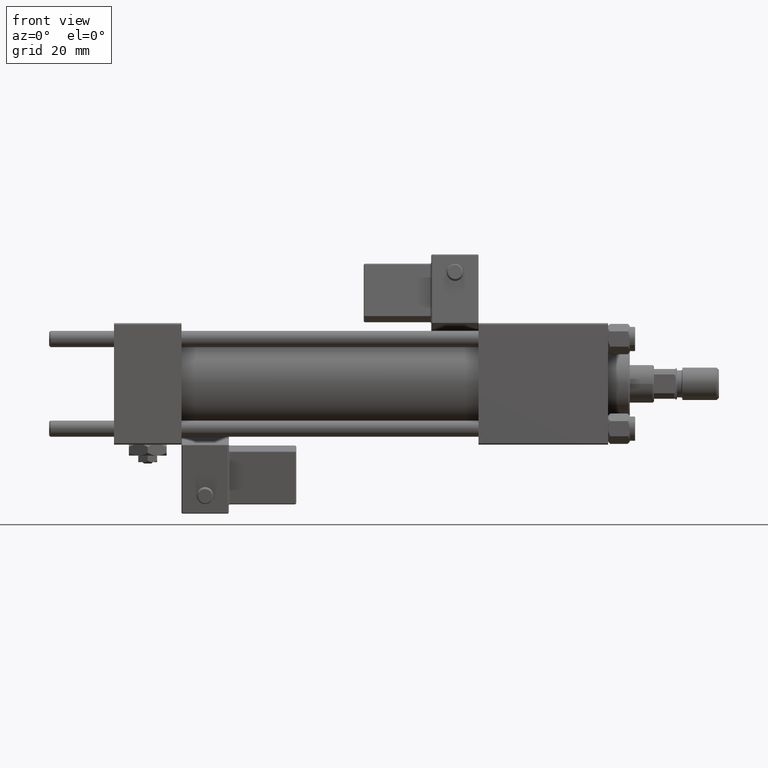
[diagram: clean part render]
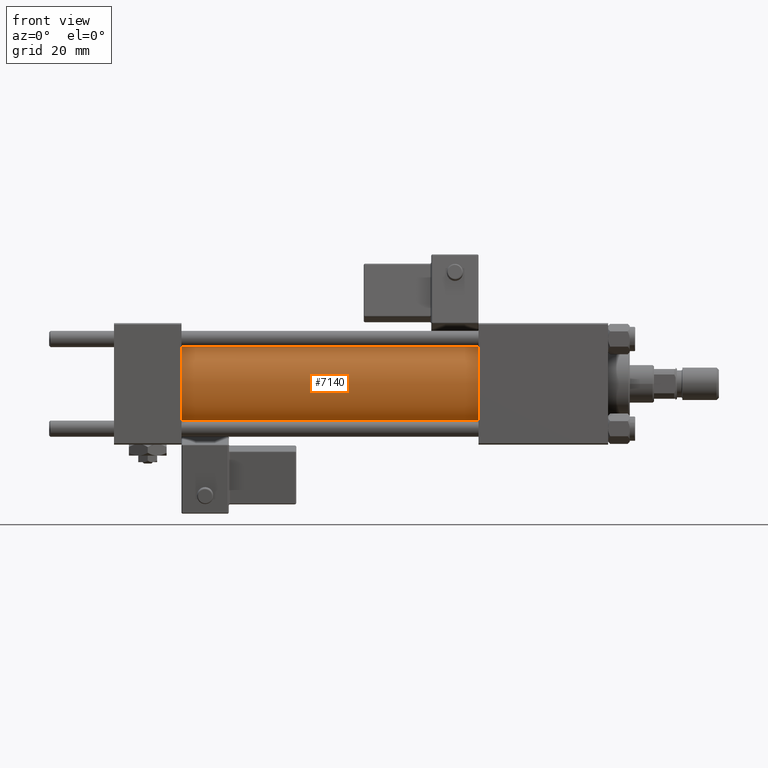
[diagram: same view with one face highlighted and labeled with its STEP entity id]
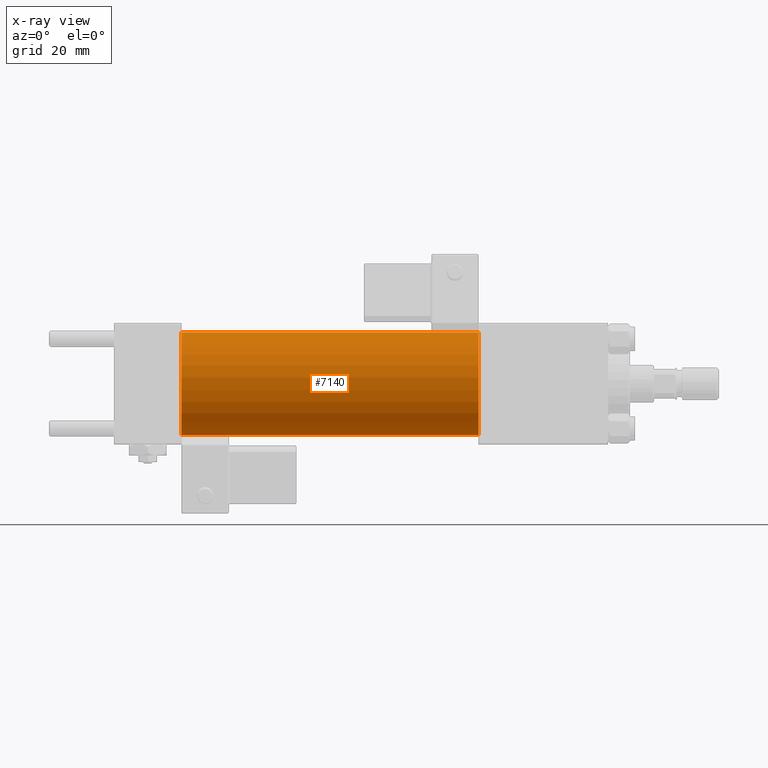
[diagram: x-ray of the same camera — body ghosted, the highlighted face saturated]
A machine part, front view. The second image highlights one B-rep face of the part: STEP entity #7140.
The next image is the same camera in x-ray: the body ghosted, the highlighted face saturated — about 0% of this face is hidden behind the body in this view.
In plain terms, the highlighted cylindrical surface (partial cylindrical patch) has radius 19 mm, axis along (-1, -0, -0).
Its self-contained STEP definition (entity closure, byte-faithful):
#110 = LINE ( 'NONE', #36968, #50921 ) ;
#126 = AXIS2_PLACEMENT_3D ( 'NONE', #25925, #51706, #886 ) ;
#674 = ORIENTED_EDGE ( 'NONE', *, *, #40331, .T. ) ;
#886 = DIRECTION ( 'NONE',  ( 0.000000000000000000, 0.000000000000000000, 1.000000000000000000 ) ) ;
#5715 = DIRECTION ( 'NONE',  ( 1.000000000000000000, 0.000000000000000000, 0.000000000000000000 ) ) ;
#6287 = AXIS2_PLACEMENT_3D ( 'NONE', #15072, #5715, #48565 ) ;
#7140 = ADVANCED_FACE ( 'NONE', ( #46776 ), #9164, .T. ) ;
#9164 = CYLINDRICAL_SURFACE ( 'NONE', #126, 19.00000000000000000 ) ;
#9641 = CIRCLE ( 'NONE', #40353, 19.00000000000000000 ) ;
#15069 = EDGE_LOOP ( 'NONE', ( #39482, #18516, #33858, #674 ) ) ;
#15072 = CARTESIAN_POINT ( 'NONE',  ( 135.0000000000000000, 0.000000000000000000, 0.000000000000000000 ) ) ;
#17915 = LINE ( 'NONE', #30274, #35596 ) ;
#18516 = ORIENTED_EDGE ( 'NONE', *, *, #46470, .F. ) ;
#20039 = CARTESIAN_POINT ( 'NONE',  ( 24.99999999999999289, 0.000000000000000000, 19.00000000000000000 ) ) ;
#25925 = CARTESIAN_POINT ( 'NONE',  ( 135.0000000000000000, 0.000000000000000000, 0.000000000000000000 ) ) ;
#26424 = DIRECTION ( 'NONE',  ( -1.000000000000000000, -0.000000000000000000, -0.000000000000000000 ) ) ;
#26674 = EDGE_CURVE ( 'NONE', #47777, #35518, #17915, .T. ) ;
#26785 = DIRECTION ( 'NONE',  ( 0.000000000000000000, 0.000000000000000000, 1.000000000000000000 ) ) ;
#30274 = CARTESIAN_POINT ( 'NONE',  ( 135.0000000000000000, 0.000000000000000000, 19.00000000000000000 ) ) ;
#30358 = DIRECTION ( 'NONE',  ( 1.000000000000000000, -0.000000000000000000, 0.000000000000000000 ) ) ;
#33384 = DIRECTION ( 'NONE',  ( -1.000000000000000000, -0.000000000000000000, -0.000000000000000000 ) ) ;
#33858 = ORIENTED_EDGE ( 'NONE', *, *, #26674, .T. ) ;
#34493 = CARTESIAN_POINT ( 'NONE',  ( 24.99999999999999289, 0.000000000000000000, 0.000000000000000000 ) ) ;
#34784 = VERTEX_POINT ( 'NONE', #36458 ) ;
#35518 = VERTEX_POINT ( 'NONE', #20039 ) ;
#35596 = VECTOR ( 'NONE', #26424, 1000.000000000000000 ) ;
#36458 = CARTESIAN_POINT ( 'NONE',  ( 24.99999999999999289, 2.326828918379970970E-15, -19.00000000000000000 ) ) ;
#36968 = CARTESIAN_POINT ( 'NONE',  ( 135.0000000000000000, 2.326828918379970970E-15, -19.00000000000000000 ) ) ;
#39482 = ORIENTED_EDGE ( 'NONE', *, *, #53188, .F. ) ;
#40331 = EDGE_CURVE ( 'NONE', #35518, #34784, #9641, .T. ) ;
#40353 = AXIS2_PLACEMENT_3D ( 'NONE', #34493, #30358, #26785 ) ;
#40496 = CIRCLE ( 'NONE', #6287, 19.00000000000000000 ) ;
#43851 = VERTEX_POINT ( 'NONE', #53684 ) ;
#46470 = EDGE_CURVE ( 'NONE', #47777, #43851, #40496, .T. ) ;
#46776 = FACE_OUTER_BOUND ( 'NONE', #15069, .T. ) ;
#47777 = VERTEX_POINT ( 'NONE', #48771 ) ;
#48565 = DIRECTION ( 'NONE',  ( 0.000000000000000000, 0.000000000000000000, -1.000000000000000000 ) ) ;
#48771 = CARTESIAN_POINT ( 'NONE',  ( 135.0000000000000000, 0.000000000000000000, 19.00000000000000000 ) ) ;
#50921 = VECTOR ( 'NONE', #33384, 1000.000000000000000 ) ;
#51706 = DIRECTION ( 'NONE',  ( -1.000000000000000000, -0.000000000000000000, -0.000000000000000000 ) ) ;
#53188 = EDGE_CURVE ( 'NONE', #43851, #34784, #110, .T. ) ;
#53684 = CARTESIAN_POINT ( 'NONE',  ( 135.0000000000000000, 2.326828918379970970E-15, -19.00000000000000000 ) ) ;